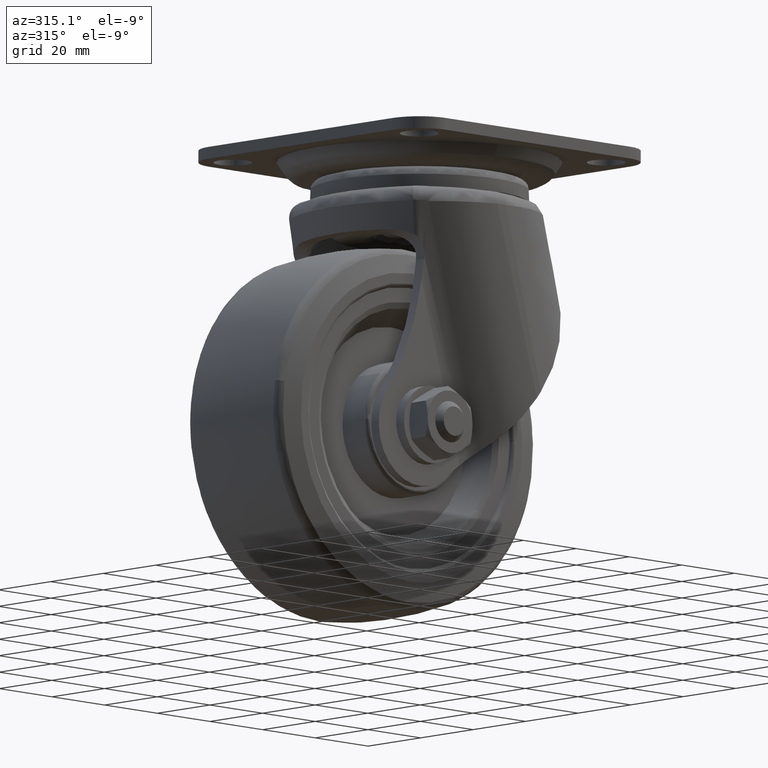
[diagram: clean part render]
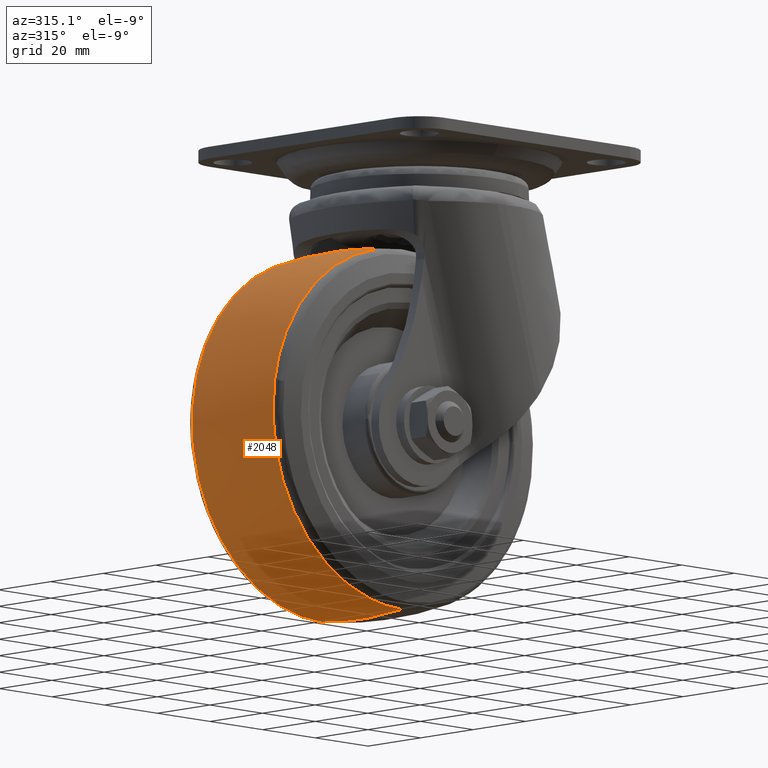
[diagram: same view with one face highlighted and labeled with its STEP entity id]
A machine part, auxiliary view. The second image highlights one B-rep face of the part: STEP entity #2048.
In plain terms, the highlighted face is a freeform B-spline surface patch.
Its self-contained STEP definition (entity closure, byte-faithful):
#1662=CARTESIAN_POINT('',(-70.357850270847223,-15.379529841736380,-72.029291192430449));
#1663=VERTEX_POINT('',#1662);
#1677=CARTESIAN_POINT('',(-22.0,-15.379529741100150,-129.010577971606810));
#1678=VERTEX_POINT('',#1677);
#1679=CARTESIAN_POINT('',(-70.357850270847223,-15.379529841736369,-72.029291192430449));
#1680=CARTESIAN_POINT('',(-71.010377086765033,-15.379529838241288,-75.988036455204409));
#1681=CARTESIAN_POINT('',(-71.010377055315459,-15.379529834122700,-80.000199882943321));
#1682=CARTESIAN_POINT('',(-71.010376671144797,-15.379529783812281,-129.010577917866530));
#1683=CARTESIAN_POINT('',(-22.0,-15.379529741100150,-129.010577971606810));
#1691=(BOUNDED_CURVE()B_SPLINE_CURVE(2,(#1679,#1680,#1681,#1682,#1683),.UNSPECIFIED.,.F.,.U.)B_SPLINE_CURVE_WITH_KNOTS((3,2,3),(0.722006109685978,0.750000000000000,1.0),.UNSPECIFIED.)CURVE()GEOMETRIC_REPRESENTATION_ITEM()RATIONAL_B_SPLINE_CURVE((0.941751133535796,0.967203117435261,1.0,0.707106781186547,1.0))REPRESENTATION_ITEM(''));
#1692=EDGE_CURVE('',#1663,#1678,#1691,.T.);
#1759=CARTESIAN_POINT('',(-22.0,-15.379529741063420,-30.989822028407421));
#1760=VERTEX_POINT('',#1759);
#1776=CARTESIAN_POINT('',(-22.0,-15.379529741063420,-30.989822028407421));
#1777=CARTESIAN_POINT('',(-63.593243030023508,-15.379529791392207,-30.989821965083905));
#1778=CARTESIAN_POINT('',(-70.357850270847223,-15.379529841736369,-72.029291192430449));
#1786=(BOUNDED_CURVE()B_SPLINE_CURVE(2,(#1776,#1777,#1778),.UNSPECIFIED.,.F.,.U.)B_SPLINE_CURVE_WITH_KNOTS((3,3),(0.500000000000000,0.722006109685978),.UNSPECIFIED.)CURVE()GEOMETRIC_REPRESENTATION_ITEM()RATIONAL_B_SPLINE_CURVE((1.0,0.739903663751286,0.941751133535796))REPRESENTATION_ITEM(''));
#1787=EDGE_CURVE('',#1760,#1663,#1786,.T.);
#1914=CARTESIAN_POINT('',(-22.0,15.379511947889400,-129.010580270991710));
#1915=VERTEX_POINT('',#1914);
#1916=CARTESIAN_POINT('',(-22.0,-15.379529741100150,-129.010577971606810));
#1917=CARTESIAN_POINT('',(-22.0,-8.847438433569419,-129.855292513107710));
#1918=CARTESIAN_POINT('',(-22.0,1.457719703155433,-130.330609009492890));
#1919=CARTESIAN_POINT('',(-22.0,11.715133316308570,-129.484141795622610));
#1920=CARTESIAN_POINT('',(-22.0,15.379511947889400,-129.010580270991710));
#1921=B_SPLINE_CURVE_WITH_KNOTS('',3,(#1916,#1917,#1918,#1919,#1920),.UNSPECIFIED.,.F.,.U.,(4,1,4),(-3.270703E-009,19.759324910075321,30.843897303461102),.UNSPECIFIED.);
#1922=EDGE_CURVE('',#1678,#1915,#1921,.T.);
#1941=CARTESIAN_POINT('',(-22.0,15.379511947800150,-30.989819729015739));
#1942=VERTEX_POINT('',#1941);
#1956=CARTESIAN_POINT('',(-22.0,-15.379529741063420,-30.989822028407421));
#1957=CARTESIAN_POINT('',(-22.0,-9.484719286271492,-30.227691794708019));
#1958=CARTESIAN_POINT('',(-22.0,0.809828628260638,-29.669639427019629));
#1959=CARTESIAN_POINT('',(-22.0,11.077849312738090,-30.433851277689200));
#1960=CARTESIAN_POINT('',(-22.0,15.379511947800150,-30.989819729015739));
#1961=B_SPLINE_CURVE_WITH_KNOTS('',3,(#1956,#1957,#1958,#1959,#1960),.UNSPECIFIED.,.F.,.U.,(4,1,4),(-3.269367E-009,17.831563172839779,30.843897303334039),.UNSPECIFIED.);
#1962=EDGE_CURVE('',#1760,#1942,#1961,.T.);
#1969=CARTESIAN_POINT('',(-20.635708265859375,-16.927346447806755,-31.200095024315480));
#1970=CARTESIAN_POINT('',(-20.602163115407091,-8.506200505831275,-30.000200000009517));
#1971=CARTESIAN_POINT('',(-20.602163115407087,1.836910E-015,-30.000200000009517));
#1972=CARTESIAN_POINT('',(-20.602163115407091,8.506186996124830,-30.000200000009517));
#1973=CARTESIAN_POINT('',(-20.635708159838117,16.927319832298231,-31.200091231982356));
#1974=CARTESIAN_POINT('',(-21.313881486181426,-16.927346447806755,-31.200095024315484));
#1975=CARTESIAN_POINT('',(-21.297011231676336,-8.506200505831275,-30.000200000009517));
#1976=CARTESIAN_POINT('',(-21.297011231676329,1.836910E-015,-30.000200000009510));
#1977=CARTESIAN_POINT('',(-21.297011231676333,8.506186996124830,-30.000200000009521));
#1978=CARTESIAN_POINT('',(-21.313881432862072,16.927319832298235,-31.200091231982356));
#1979=CARTESIAN_POINT('',(-70.800104975694012,-16.927346447806766,-31.200095024315470));
#1980=CARTESIAN_POINT('',(-71.999999999999986,-8.506200505831277,-30.000200000009510));
#1981=CARTESIAN_POINT('',(-71.999999999999972,1.836910E-015,-30.000200000009524));
#1982=CARTESIAN_POINT('',(-71.999999999999986,8.506186996124828,-30.000200000009521));
#1983=CARTESIAN_POINT('',(-70.800108768027144,16.927319832298235,-31.200091231982366));
#1984=CARTESIAN_POINT('',(-70.800104975694040,-16.927346447806759,-80.000200000009499));
#1985=CARTESIAN_POINT('',(-71.999999999999986,-8.506200505831275,-80.000200000009499));
#1986=CARTESIAN_POINT('',(-71.999999999999986,1.836910E-015,-80.000200000009499));
#1987=CARTESIAN_POINT('',(-72.0,8.506186996124830,-80.000200000009514));
#1988=CARTESIAN_POINT('',(-70.800108768027144,16.927319832298224,-80.000200000009514));
#1989=CARTESIAN_POINT('',(-70.800104975694012,-16.927346447806766,-128.800304975703510));
#1990=CARTESIAN_POINT('',(-71.999999999999986,-8.506200505831277,-130.000200000009500));
#1991=CARTESIAN_POINT('',(-71.999999999999972,1.836910E-015,-130.000200000009500));
#1992=CARTESIAN_POINT('',(-71.999999999999986,8.506186996124828,-130.000200000009500));
#1993=CARTESIAN_POINT('',(-70.800108768027144,16.927319832298235,-128.800308768036640));
#1994=CARTESIAN_POINT('',(-21.313881486181412,-16.927346447806752,-128.800304975703600));
#1995=CARTESIAN_POINT('',(-21.297011231676326,-8.506200505831275,-130.000200000009500));
#1996=CARTESIAN_POINT('',(-21.297011231676329,1.836910E-015,-130.000200000009500));
#1997=CARTESIAN_POINT('',(-21.297011231676329,8.506186996124828,-130.000200000009500));
#1998=CARTESIAN_POINT('',(-21.313881432862065,16.927319832298235,-128.800308768036730));
#1999=CARTESIAN_POINT('',(-20.635708265859360,-16.927346447806755,-128.800304975703600));
#2000=CARTESIAN_POINT('',(-20.602163115407077,-8.506200505831275,-130.000200000009500));
#2001=CARTESIAN_POINT('',(-20.602163115407077,1.836910E-015,-130.000200000009500));
#2002=CARTESIAN_POINT('',(-20.602163115407070,8.506186996124828,-130.000200000009580));
#2003=CARTESIAN_POINT('',(-20.635708159838106,16.927319832298231,-128.800308768036670));
#2011=(BOUNDED_SURFACE()B_SPLINE_SURFACE(2,2,((#1969,#1974,#1979,#1984,#1989,#1994,#1999),(#1970,#1975,#1980,#1985,#1990,#1995,#2000),(#1971,#1976,#1981,#1986,#1991,#1996,#2001),(#1972,#1977,#1982,#1987,#1992,#1997,#2002),(#1973,#1978,#1983,#1988,#1993,#1998,#2003)),.UNSPECIFIED.,.F.,.F.,.U.)B_SPLINE_SURFACE_WITH_KNOTS((3,2,3),(3,1,2,1,3),(0.0,17.217158726155159,34.434290567981947),(0.0,1.656854249492381,84.499566724111375,167.342279198730410,168.999133448222810),.UNSPECIFIED.)GEOMETRIC_REPRESENTATION_ITEM()RATIONAL_B_SPLINE_SURFACE(((0.982856308242885,0.977165540775875,0.686936399958363,0.971474773308865,0.686936399958363,0.977165540775875,0.982856308242886),(0.994685762016781,0.988926501658059,0.695204223363232,0.983167241299337,0.695204223363232,0.988926501658059,0.994685762016781),(1.011715728752538,1.005857864376269,0.707106781186548,1.0,0.707106781186548,1.005857864376269,1.011715728752538),(0.994685788608812,0.988926528096121,0.695204241948893,0.983167267583430,0.695204241948893,0.988926528096121,0.994685788608812),(0.982856345185918,0.977165577505007,0.686936425778530,0.971474809824096,0.686936425778530,0.977165577505007,0.982856345185918)))REPRESENTATION_ITEM('')SURFACE());
#2012=ORIENTED_EDGE('',*,*,#1922,.F.);
#2013=ORIENTED_EDGE('',*,*,#1692,.F.);
#2014=ORIENTED_EDGE('',*,*,#1787,.F.);
#2015=ORIENTED_EDGE('',*,*,#1962,.T.);
#2016=CARTESIAN_POINT('',(-70.542889178420083,15.379512192586359,-86.753354274438237));
#2017=VERTEX_POINT('',#2016);
#2018=CARTESIAN_POINT('',(-22.0,15.379511947800150,-30.989819729015739));
#2019=CARTESIAN_POINT('',(-71.010377161606471,15.379512054322854,-30.989819842603954));
#2020=CARTESIAN_POINT('',(-71.010378099550721,15.379512176735201,-80.000200244076140));
#2021=CARTESIAN_POINT('',(-71.010378164480187,15.379512185209236,-83.392958294622986));
#2022=CARTESIAN_POINT('',(-70.542889178420083,15.379512192586359,-86.753354274438237));
#2030=(BOUNDED_CURVE()B_SPLINE_CURVE(2,(#2018,#2019,#2020,#2021,#2022),.UNSPECIFIED.,.F.,.U.)B_SPLINE_CURVE_WITH_KNOTS((3,2,3),(0.500000000000000,0.750000000000000,0.773792607272082),.UNSPECIFIED.)CURVE()GEOMETRIC_REPRESENTATION_ITEM()RATIONAL_B_SPLINE_CURVE((1.0,0.707106781186547,1.0,0.972125226688463,0.949556161650523))REPRESENTATION_ITEM(''));
#2031=EDGE_CURVE('',#1942,#2017,#2030,.T.);
#2032=ORIENTED_EDGE('',*,*,#2031,.T.);
#2033=CARTESIAN_POINT('',(-70.542889178420083,15.379512192586359,-86.753354274438237));
#2034=CARTESIAN_POINT('',(-64.664179180535314,15.379512070257109,-129.010580401475860));
#2035=CARTESIAN_POINT('',(-22.0,15.379511947889400,-129.010580270991710));
#2043=(BOUNDED_CURVE()B_SPLINE_CURVE(2,(#2033,#2034,#2035),.UNSPECIFIED.,.F.,.U.)B_SPLINE_CURVE_WITH_KNOTS((3,3),(0.773792607272082,1.0),.UNSPECIFIED.)CURVE()GEOMETRIC_REPRESENTATION_ITEM()RATIONAL_B_SPLINE_CURVE((0.949556161650523,0.734981554498085,1.0))REPRESENTATION_ITEM(''));
#2044=EDGE_CURVE('',#2017,#1915,#2043,.T.);
#2045=ORIENTED_EDGE('',*,*,#2044,.T.);
#2046=EDGE_LOOP('',(#2012,#2013,#2014,#2015,#2032,#2045));
#2047=FACE_OUTER_BOUND('',#2046,.T.);
#2048=ADVANCED_FACE('',(#2047),#2011,.T.);